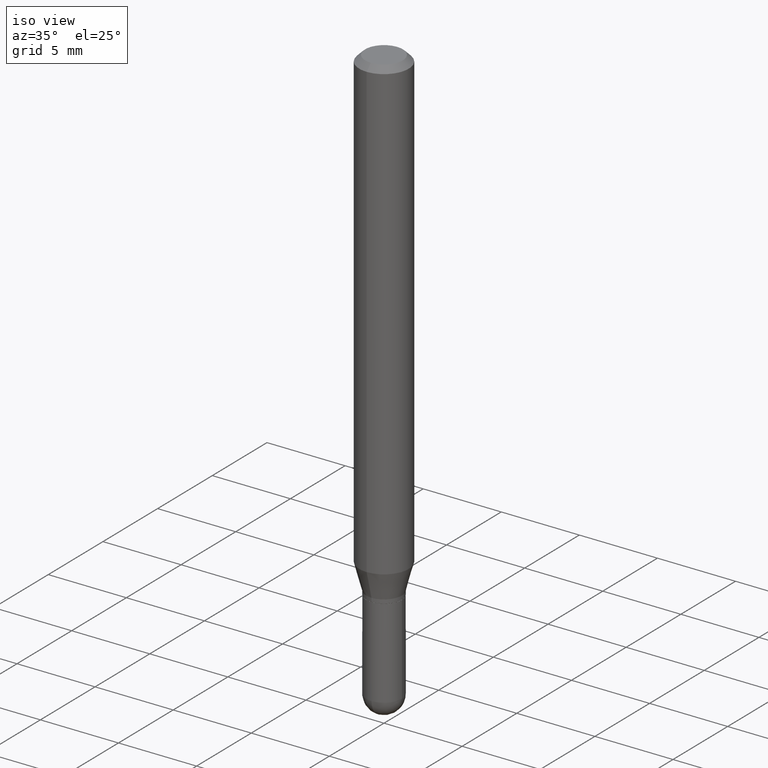
[diagram: clean part render]
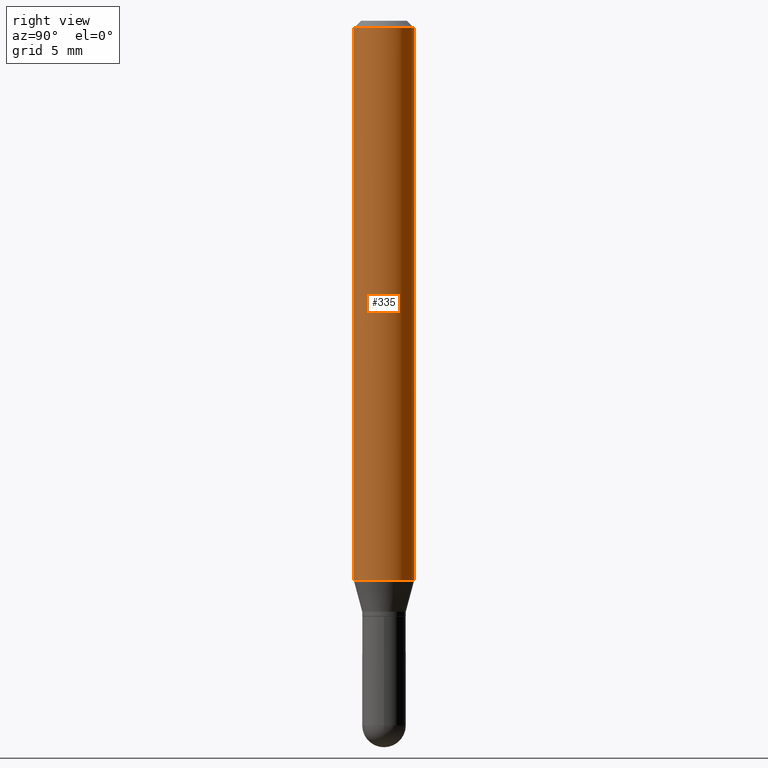
[diagram: tour spotlight — one face highlighted and labeled with its STEP entity id]
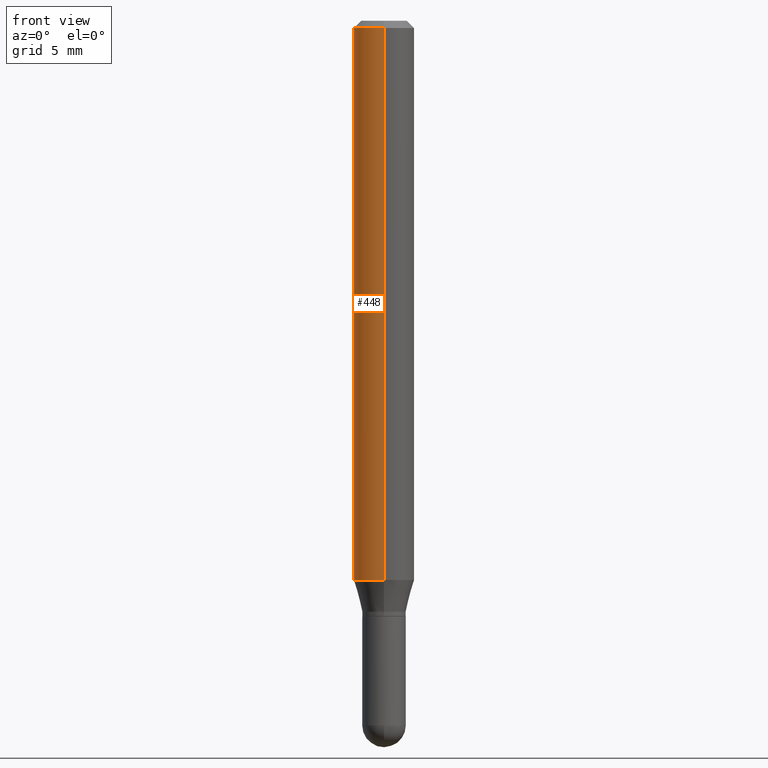
[diagram: tour spotlight — one face highlighted and labeled with its STEP entity id]
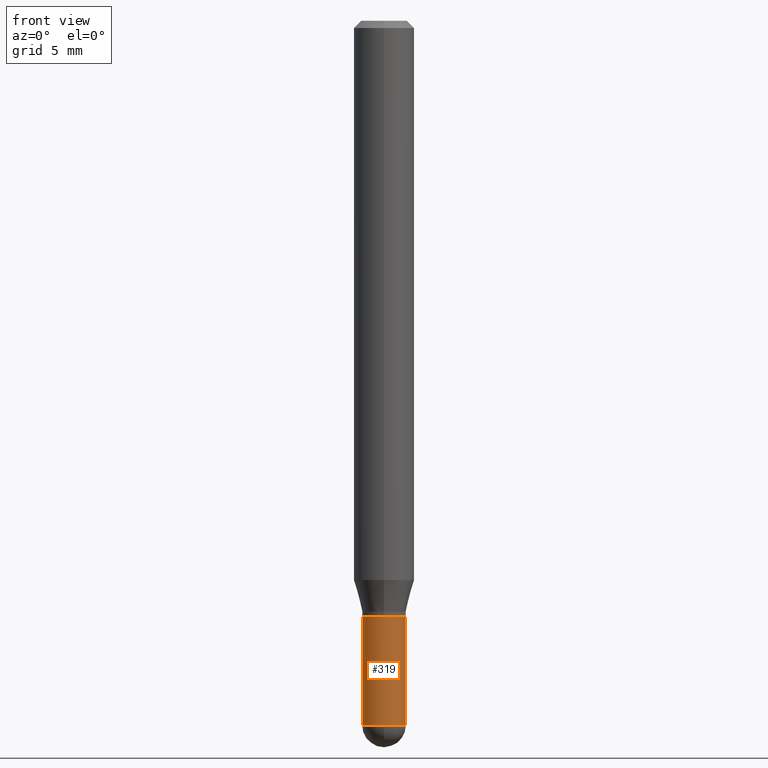
[diagram: tour spotlight — one face highlighted and labeled with its STEP entity id]
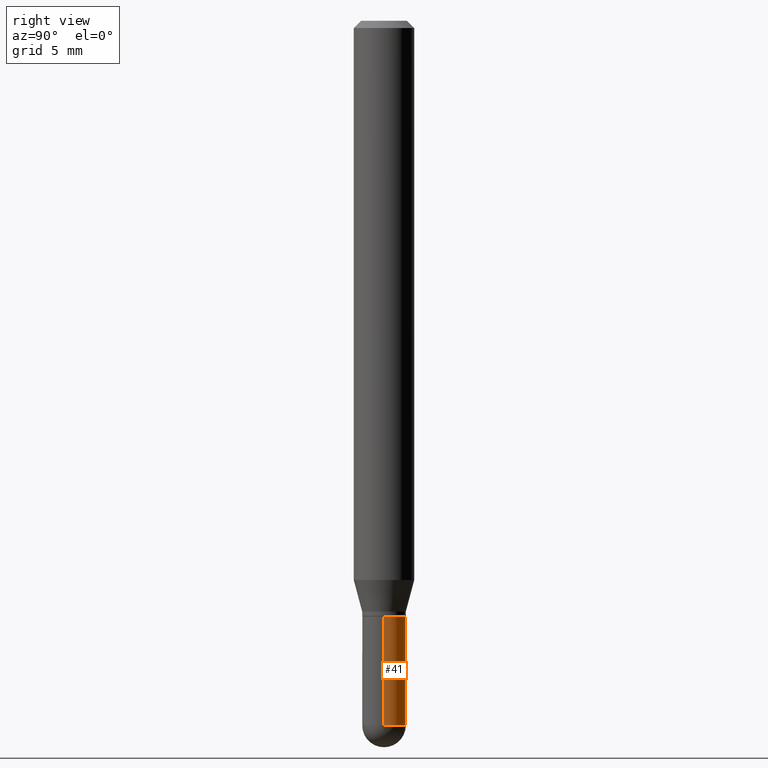
[diagram: tour spotlight — one face highlighted and labeled with its STEP entity id]
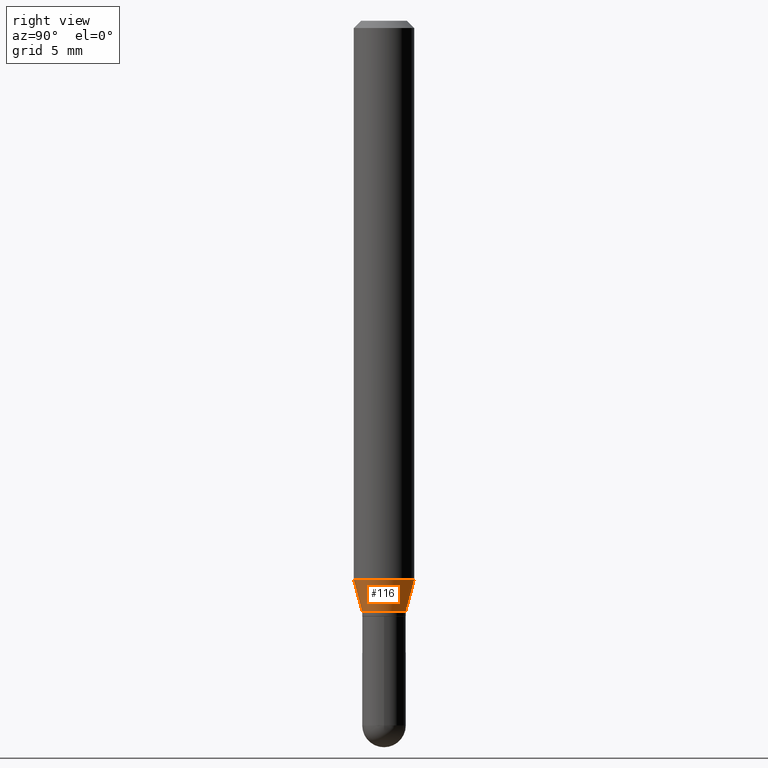
[diagram: tour spotlight — one face highlighted and labeled with its STEP entity id]
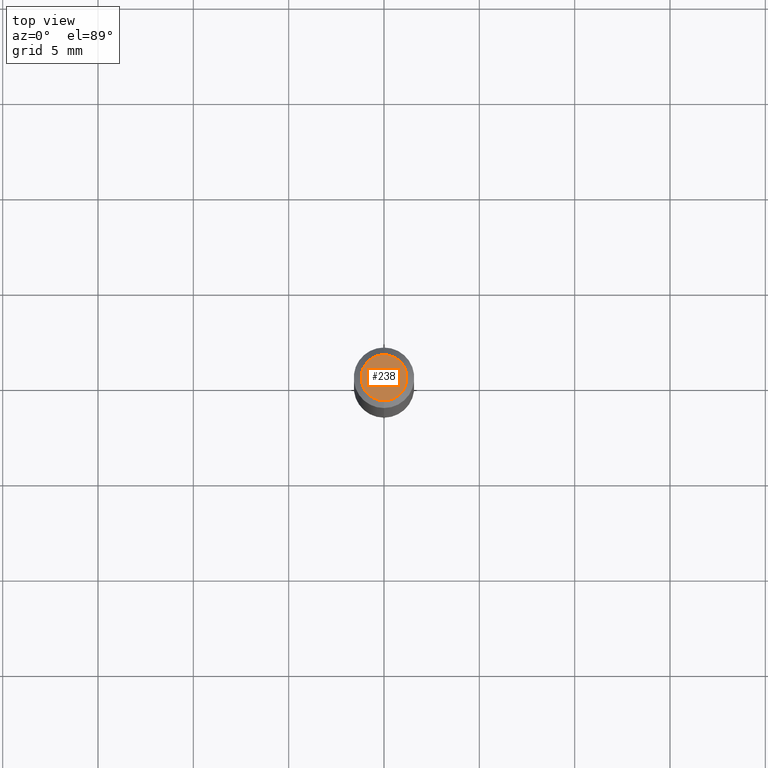
[diagram: tour spotlight — one face highlighted and labeled with its STEP entity id]
A machine part: a face-by-face anatomy tour. The part has 17 B-rep faces; the first image is the clean iso view, then the 6 largest visible faces are spotlighted one at a time (largest first), each with its STEP entity span.

Face 1 — right view, entity #335. In plain terms, the highlighted cylindrical surface (edge-blend (fillet) strip) has radius 1.5875 mm, axis along (-0, 0, 1).
Definition (entity closure, byte-faithful):
#1 = DIRECTION ( 'NONE',  ( -2.445450573677672764E-29, 3.491507448831563559E-15, 1.000000000000000000 ) ) ;
#18 = CIRCLE ( 'NONE', #508, 0.06250000000000000000 ) ;
#25 = EDGE_LOOP ( 'NONE', ( #144, #487, #149, #181 ) ) ;
#36 = VECTOR ( 'NONE', #1, 39.37007874015748143 ) ;
#45 = CARTESIAN_POINT ( 'NONE',  ( 2.823735148590400292E-29, -4.031605631678729186E-15, -1.154689110867545221 ) ) ;
#55 = VERTEX_POINT ( 'NONE', #104 ) ;
#68 = EDGE_CURVE ( 'NONE', #505, #55, #18, .T. ) ;
#97 = VECTOR ( 'NONE', #118, 39.37007874015748143 ) ;
#104 = CARTESIAN_POINT ( 'NONE',  ( 4.440892098500909166E-16, 0.06249999999999993755, -0.01500000000000022669 ) ) ;
#118 = DIRECTION ( 'NONE',  ( -2.445450573677672764E-29, 3.491507448831563559E-15, 1.000000000000000000 ) ) ;
#131 = LINE ( 'NONE', #279, #36 ) ;
#138 = CARTESIAN_POINT ( 'NONE',  ( 0.000000000000000000, 0.000000000000000000, 0.000000000000000000 ) ) ;
#144 = ORIENTED_EDGE ( 'NONE', *, *, #422, .T. ) ;
#149 = ORIENTED_EDGE ( 'NONE', *, *, #68, .F. ) ;
#156 = DIRECTION ( 'NONE',  ( -2.445450573677672764E-29, 3.491507448831563559E-15, 1.000000000000000000 ) ) ;
#177 = AXIS2_PLACEMENT_3D ( 'NONE', #138, #321, #362 ) ;
#181 = ORIENTED_EDGE ( 'NONE', *, *, #473, .F. ) ;
#206 = LINE ( 'NONE', #471, #97 ) ;
#237 = DIRECTION ( 'NONE',  ( -6.982962677686265922E-15, -1.000000000000000000, 3.483106191921935554E-15 ) ) ;
#255 = AXIS2_PLACEMENT_3D ( 'NONE', #45, #317, #479 ) ;
#262 = CARTESIAN_POINT ( 'NONE',  ( 4.440892098500907193E-16, 0.06249999999999596156, -1.154689110867545443 ) ) ;
#279 = CARTESIAN_POINT ( 'NONE',  ( 4.440892098500625669E-16, 0.06250000000000000000, -2.182192155519727224E-16 ) ) ;
#285 = CARTESIAN_POINT ( 'NONE',  ( -4.364351673553912750E-16, -0.06250000000000005551, -0.01499999999999979128 ) ) ;
#292 = VERTEX_POINT ( 'NONE', #262 ) ;
#293 = CIRCLE ( 'NONE', #255, 0.06250000000000000000 ) ;
#317 = DIRECTION ( 'NONE',  ( -2.445450573677672764E-29, 3.491507448831563559E-15, 1.000000000000000000 ) ) ;
#321 = DIRECTION ( 'NONE',  ( -2.445450573677672764E-29, 3.491507448831563559E-15, 1.000000000000000000 ) ) ;
#335 = ADVANCED_FACE ( 'NONE', ( #492 ), #403, .T. ) ;
#362 = DIRECTION ( 'NONE',  ( -6.982962677686265922E-15, -1.000000000000000000, 3.491507448831563559E-15 ) ) ;
#376 = CARTESIAN_POINT ( 'NONE',  ( 3.668175860516511966E-31, -5.237261173247348568E-17, -0.01500000000000000812 ) ) ;
#403 = CYLINDRICAL_SURFACE ( 'NONE', #177, 0.06250000000000000000 ) ;
#422 = EDGE_CURVE ( 'NONE', #462, #292, #293, .T. ) ;
#434 = CARTESIAN_POINT ( 'NONE',  ( -4.364351673553634183E-16, -0.06250000000000402456, -1.154689110867544777 ) ) ;
#462 = VERTEX_POINT ( 'NONE', #434 ) ;
#471 = CARTESIAN_POINT ( 'NONE',  ( -4.364351673553916201E-16, -0.06250000000000000000, 2.182192155519727224E-16 ) ) ;
#473 = EDGE_CURVE ( 'NONE', #462, #505, #206, .T. ) ;
#479 = DIRECTION ( 'NONE',  ( -6.982962677686265922E-15, -1.000000000000000000, 4.370956789862821150E-15 ) ) ;
#487 = ORIENTED_EDGE ( 'NONE', *, *, #495, .T. ) ;
#492 = FACE_OUTER_BOUND ( 'NONE', #25, .T. ) ;
#495 = EDGE_CURVE ( 'NONE', #292, #55, #131, .T. ) ;
#505 = VERTEX_POINT ( 'NONE', #285 ) ;
#508 = AXIS2_PLACEMENT_3D ( 'NONE', #376, #156, #237 ) ;

Face 2 — front view, entity #448. In plain terms, the highlighted cylindrical surface (edge-blend (fillet) strip) has radius 1.5875 mm, axis along (-0, 0, 1).
Definition (entity closure, byte-faithful):
#1 = DIRECTION ( 'NONE',  ( -2.445450573677672764E-29, 3.491507448831563559E-15, 1.000000000000000000 ) ) ;
#36 = VECTOR ( 'NONE', #1, 39.37007874015748143 ) ;
#54 = AXIS2_PLACEMENT_3D ( 'NONE', #126, #280, #435 ) ;
#55 = VERTEX_POINT ( 'NONE', #104 ) ;
#58 = EDGE_LOOP ( 'NONE', ( #109, #101, #500, #62 ) ) ;
#62 = ORIENTED_EDGE ( 'NONE', *, *, #174, .F. ) ;
#85 = CIRCLE ( 'NONE', #54, 0.06250000000000000000 ) ;
#97 = VECTOR ( 'NONE', #118, 39.37007874015748143 ) ;
#101 = ORIENTED_EDGE ( 'NONE', *, *, #145, .T. ) ;
#104 = CARTESIAN_POINT ( 'NONE',  ( 4.440892098500909166E-16, 0.06249999999999993755, -0.01500000000000022669 ) ) ;
#109 = ORIENTED_EDGE ( 'NONE', *, *, #495, .F. ) ;
#118 = DIRECTION ( 'NONE',  ( -2.445450573677672764E-29, 3.491507448831563559E-15, 1.000000000000000000 ) ) ;
#126 = CARTESIAN_POINT ( 'NONE',  ( 3.668175860516511966E-31, -5.237261173247348568E-17, -0.01500000000000000812 ) ) ;
#131 = LINE ( 'NONE', #279, #36 ) ;
#134 = AXIS2_PLACEMENT_3D ( 'NONE', #397, #450, #360 ) ;
#145 = EDGE_CURVE ( 'NONE', #292, #462, #150, .T. ) ;
#150 = CIRCLE ( 'NONE', #465, 0.06250000000000000000 ) ;
#169 = CARTESIAN_POINT ( 'NONE',  ( 2.823735148590400292E-29, -4.031605631678729186E-15, -1.154689110867545221 ) ) ;
#174 = EDGE_CURVE ( 'NONE', #55, #505, #85, .T. ) ;
#206 = LINE ( 'NONE', #471, #97 ) ;
#262 = CARTESIAN_POINT ( 'NONE',  ( 4.440892098500907193E-16, 0.06249999999999596156, -1.154689110867545443 ) ) ;
#274 = DIRECTION ( 'NONE',  ( -6.982962677686265922E-15, -1.000000000000000000, 4.370956789862821150E-15 ) ) ;
#279 = CARTESIAN_POINT ( 'NONE',  ( 4.440892098500625669E-16, 0.06250000000000000000, -2.182192155519727224E-16 ) ) ;
#280 = DIRECTION ( 'NONE',  ( -2.445450573677672764E-29, 3.491507448831563559E-15, 1.000000000000000000 ) ) ;
#285 = CARTESIAN_POINT ( 'NONE',  ( -4.364351673553912750E-16, -0.06250000000000005551, -0.01499999999999979128 ) ) ;
#292 = VERTEX_POINT ( 'NONE', #262 ) ;
#360 = DIRECTION ( 'NONE',  ( -6.982962677686265922E-15, -1.000000000000000000, 3.491507448831563559E-15 ) ) ;
#386 = CYLINDRICAL_SURFACE ( 'NONE', #134, 0.06250000000000000000 ) ;
#397 = CARTESIAN_POINT ( 'NONE',  ( 0.000000000000000000, 0.000000000000000000, 0.000000000000000000 ) ) ;
#432 = DIRECTION ( 'NONE',  ( -2.445450573677672764E-29, 3.491507448831563559E-15, 1.000000000000000000 ) ) ;
#434 = CARTESIAN_POINT ( 'NONE',  ( -4.364351673553634183E-16, -0.06250000000000402456, -1.154689110867544777 ) ) ;
#435 = DIRECTION ( 'NONE',  ( -6.982962677686265922E-15, -1.000000000000000000, 3.483106191921935554E-15 ) ) ;
#448 = ADVANCED_FACE ( 'NONE', ( #469 ), #386, .T. ) ;
#450 = DIRECTION ( 'NONE',  ( -2.445450573677672764E-29, 3.491507448831563559E-15, 1.000000000000000000 ) ) ;
#462 = VERTEX_POINT ( 'NONE', #434 ) ;
#465 = AXIS2_PLACEMENT_3D ( 'NONE', #169, #432, #274 ) ;
#469 = FACE_OUTER_BOUND ( 'NONE', #58, .T. ) ;
#471 = CARTESIAN_POINT ( 'NONE',  ( -4.364351673553916201E-16, -0.06250000000000000000, 2.182192155519727224E-16 ) ) ;
#473 = EDGE_CURVE ( 'NONE', #462, #505, #206, .T. ) ;
#495 = EDGE_CURVE ( 'NONE', #292, #55, #131, .T. ) ;
#500 = ORIENTED_EDGE ( 'NONE', *, *, #473, .T. ) ;
#505 = VERTEX_POINT ( 'NONE', #285 ) ;

Face 3 — front view, entity #319. In plain terms, the highlighted cylindrical surface (edge-blend (fillet) strip) has radius 1.143 mm, axis along (-0, 0, 1).
Definition (entity closure, byte-faithful):
#7 = CARTESIAN_POINT ( 'NONE',  ( 3.558157112999374623E-29, -5.080105348016777334E-15, -1.455000000000000293 ) ) ;
#13 = CARTESIAN_POINT ( 'NONE',  ( -0.04500000000000001221, -4.367569466304877886E-15, -1.455000000000000293 ) ) ;
#23 = VERTEX_POINT ( 'NONE', #265 ) ;
#35 = AXIS2_PLACEMENT_3D ( 'NONE', #355, #272, #318 ) ;
#38 = EDGE_CURVE ( 'NONE', #135, #23, #147, .T. ) ;
#47 = AXIS2_PLACEMENT_3D ( 'NONE', #171, #286, #180 ) ;
#49 = FACE_OUTER_BOUND ( 'NONE', #259, .T. ) ;
#52 = CARTESIAN_POINT ( 'NONE',  ( 3.558157112999374623E-29, -5.080105348016777334E-15, -1.455000000000000293 ) ) ;
#75 = AXIS2_PLACEMENT_3D ( 'NONE', #52, #136, #289 ) ;
#76 = CARTESIAN_POINT ( 'NONE',  ( -3.197442310920094252E-16, -0.04500000000000508454, -1.454999999999999849 ) ) ;
#92 = ORIENTED_EDGE ( 'NONE', *, *, #369, .T. ) ;
#102 = EDGE_CURVE ( 'NONE', #457, #410, #480, .T. ) ;
#107 = CYLINDRICAL_SURFACE ( 'NONE', #47, 0.04500000000000000527 ) ;
#132 = VECTOR ( 'NONE', #387, 39.37007874015748143 ) ;
#135 = VERTEX_POINT ( 'NONE', #240 ) ;
#136 = DIRECTION ( 'NONE',  ( -2.445468806185136597E-29, 3.491481338843145583E-15, 1.000000000000000000 ) ) ;
#147 = LINE ( 'NONE', #296, #207 ) ;
#153 = ORIENTED_EDGE ( 'NONE', *, *, #166, .T. ) ;
#159 = EDGE_CURVE ( 'NONE', #410, #23, #459, .T. ) ;
#165 = DIRECTION ( 'NONE',  ( -2.445468806185136597E-29, 3.491481338843145583E-15, 1.000000000000000000 ) ) ;
#166 = EDGE_CURVE ( 'NONE', #230, #135, #245, .T. ) ;
#170 = CARTESIAN_POINT ( 'NONE',  ( -0.04499999999999999833, -4.367569466304877886E-15, -1.230000000000000204 ) ) ;
#171 = CARTESIAN_POINT ( 'NONE',  ( 0.000000000000000000, 0.000000000000000000, 0.000000000000000000 ) ) ;
#179 = ORIENTED_EDGE ( 'NONE', *, *, #159, .F. ) ;
#180 = DIRECTION ( 'NONE',  ( 1.000000000000000000, -6.982962677686267499E-15, 4.876176775795935793E-29 ) ) ;
#183 = ORIENTED_EDGE ( 'NONE', *, *, #38, .T. ) ;
#207 = VECTOR ( 'NONE', #225, 39.37007874015748143 ) ;
#225 = DIRECTION ( 'NONE',  ( -2.445468806185136877E-29, 3.491481338843145188E-15, 1.000000000000000000 ) ) ;
#230 = VERTEX_POINT ( 'NONE', #76 ) ;
#240 = CARTESIAN_POINT ( 'NONE',  ( 0.04500000000000001221, -5.001547017892805729E-15, -1.455000000000000293 ) ) ;
#245 = CIRCLE ( 'NONE', #356, 0.04500000000000001221 ) ;
#259 = EDGE_LOOP ( 'NONE', ( #445, #92, #153, #183, #179 ) ) ;
#265 = CARTESIAN_POINT ( 'NONE',  ( 0.04499999999999999833, -4.608755367272951648E-15, -1.230000000000000204 ) ) ;
#272 = DIRECTION ( 'NONE',  ( -2.445468806185136597E-29, 3.491481338843145583E-15, 1.000000000000000000 ) ) ;
#286 = DIRECTION ( 'NONE',  ( -2.445468806185136597E-29, 3.491481338843145583E-15, 1.000000000000000000 ) ) ;
#289 = DIRECTION ( 'NONE',  ( 1.000000000000000000, -6.982962677686266711E-15, 0.000000000000000000 ) ) ;
#296 = CARTESIAN_POINT ( 'NONE',  ( 0.04500000000000000527, -3.142333204958820809E-16, 2.194279549108171317E-30 ) ) ;
#316 = DIRECTION ( 'NONE',  ( 1.000000000000000000, -6.982962677686266711E-15, 0.000000000000000000 ) ) ;
#318 = DIRECTION ( 'NONE',  ( 1.000000000000000000, -6.982962677686269077E-15, 0.000000000000000000 ) ) ;
#319 = ADVANCED_FACE ( 'NONE', ( #49 ), #107, .T. ) ;
#355 = CARTESIAN_POINT ( 'NONE',  ( 3.007926631607718216E-29, -4.294522046777069173E-15, -1.230000000000000204 ) ) ;
#356 = AXIS2_PLACEMENT_3D ( 'NONE', #7, #165, #316 ) ;
#369 = EDGE_CURVE ( 'NONE', #457, #230, #509, .T. ) ;
#387 = DIRECTION ( 'NONE',  ( -2.445468806185136877E-29, 3.491481338843145188E-15, 1.000000000000000000 ) ) ;
#410 = VERTEX_POINT ( 'NONE', #170 ) ;
#445 = ORIENTED_EDGE ( 'NONE', *, *, #102, .F. ) ;
#457 = VERTEX_POINT ( 'NONE', #13 ) ;
#459 = CIRCLE ( 'NONE', #35, 0.04499999999999999833 ) ;
#467 = CARTESIAN_POINT ( 'NONE',  ( -0.04500000000000000527, 3.197442310920451211E-16, -2.213520790614707910E-30 ) ) ;
#480 = LINE ( 'NONE', #467, #132 ) ;
#509 = CIRCLE ( 'NONE', #75, 0.04500000000000001221 ) ;

Face 4 — right view, entity #41. In plain terms, the highlighted cylindrical surface (edge-blend (fillet) strip) has radius 1.143 mm, axis along (-0, 0, 1).
Definition (entity closure, byte-faithful):
#2 = EDGE_CURVE ( 'NONE', #341, #457, #215, .T. ) ;
#10 = DIRECTION ( 'NONE',  ( -2.445468806185136597E-29, 3.491481338843145583E-15, 1.000000000000000000 ) ) ;
#13 = CARTESIAN_POINT ( 'NONE',  ( -0.04500000000000001221, -4.367569466304877886E-15, -1.455000000000000293 ) ) ;
#23 = VERTEX_POINT ( 'NONE', #265 ) ;
#24 = AXIS2_PLACEMENT_3D ( 'NONE', #77, #10, #73 ) ;
#38 = EDGE_CURVE ( 'NONE', #135, #23, #147, .T. ) ;
#41 = ADVANCED_FACE ( 'NONE', ( #423 ), #413, .T. ) ;
#66 = DIRECTION ( 'NONE',  ( 1.000000000000000000, -6.982962677686266711E-15, 0.000000000000000000 ) ) ;
#67 = CIRCLE ( 'NONE', #87, 0.04500000000000001221 ) ;
#73 = DIRECTION ( 'NONE',  ( 1.000000000000000000, -6.982962677686269077E-15, 0.000000000000000000 ) ) ;
#77 = CARTESIAN_POINT ( 'NONE',  ( 3.007926631607718216E-29, -4.294522046777069173E-15, -1.230000000000000204 ) ) ;
#87 = AXIS2_PLACEMENT_3D ( 'NONE', #398, #327, #250 ) ;
#102 = EDGE_CURVE ( 'NONE', #457, #410, #480, .T. ) ;
#132 = VECTOR ( 'NONE', #387, 39.37007874015748143 ) ;
#135 = VERTEX_POINT ( 'NONE', #240 ) ;
#147 = LINE ( 'NONE', #296, #207 ) ;
#163 = AXIS2_PLACEMENT_3D ( 'NONE', #415, #193, #66 ) ;
#170 = CARTESIAN_POINT ( 'NONE',  ( -0.04499999999999999833, -4.367569466304877886E-15, -1.230000000000000204 ) ) ;
#178 = ORIENTED_EDGE ( 'NONE', *, *, #2, .T. ) ;
#193 = DIRECTION ( 'NONE',  ( -2.445468806185136597E-29, 3.491481338843145583E-15, 1.000000000000000000 ) ) ;
#198 = CIRCLE ( 'NONE', #24, 0.04499999999999999833 ) ;
#207 = VECTOR ( 'NONE', #225, 39.37007874015748143 ) ;
#210 = CARTESIAN_POINT ( 'NONE',  ( 3.142333204959174810E-16, 0.04499999999999491213, -1.455000000000000515 ) ) ;
#215 = CIRCLE ( 'NONE', #163, 0.04500000000000001221 ) ;
#218 = ORIENTED_EDGE ( 'NONE', *, *, #417, .F. ) ;
#225 = DIRECTION ( 'NONE',  ( -2.445468806185136877E-29, 3.491481338843145188E-15, 1.000000000000000000 ) ) ;
#231 = DIRECTION ( 'NONE',  ( 1.000000000000000000, -6.982962677686267499E-15, 4.876176775795935793E-29 ) ) ;
#240 = CARTESIAN_POINT ( 'NONE',  ( 0.04500000000000001221, -5.001547017892805729E-15, -1.455000000000000293 ) ) ;
#250 = DIRECTION ( 'NONE',  ( 1.000000000000000000, -6.982962677686266711E-15, 0.000000000000000000 ) ) ;
#265 = CARTESIAN_POINT ( 'NONE',  ( 0.04499999999999999833, -4.608755367272951648E-15, -1.230000000000000204 ) ) ;
#296 = CARTESIAN_POINT ( 'NONE',  ( 0.04500000000000000527, -3.142333204958820809E-16, 2.194279549108171317E-30 ) ) ;
#327 = DIRECTION ( 'NONE',  ( -2.445468806185136597E-29, 3.491481338843145583E-15, 1.000000000000000000 ) ) ;
#328 = EDGE_CURVE ( 'NONE', #135, #341, #67, .T. ) ;
#340 = ORIENTED_EDGE ( 'NONE', *, *, #38, .F. ) ;
#341 = VERTEX_POINT ( 'NONE', #210 ) ;
#372 = EDGE_LOOP ( 'NONE', ( #178, #451, #218, #340, #420 ) ) ;
#377 = CARTESIAN_POINT ( 'NONE',  ( 0.000000000000000000, 0.000000000000000000, 0.000000000000000000 ) ) ;
#380 = DIRECTION ( 'NONE',  ( -2.445468806185136597E-29, 3.491481338843145583E-15, 1.000000000000000000 ) ) ;
#387 = DIRECTION ( 'NONE',  ( -2.445468806185136877E-29, 3.491481338843145188E-15, 1.000000000000000000 ) ) ;
#398 = CARTESIAN_POINT ( 'NONE',  ( 3.558157112999374623E-29, -5.080105348016777334E-15, -1.455000000000000293 ) ) ;
#410 = VERTEX_POINT ( 'NONE', #170 ) ;
#413 = CYLINDRICAL_SURFACE ( 'NONE', #485, 0.04500000000000000527 ) ;
#415 = CARTESIAN_POINT ( 'NONE',  ( 3.558157112999374623E-29, -5.080105348016777334E-15, -1.455000000000000293 ) ) ;
#417 = EDGE_CURVE ( 'NONE', #23, #410, #198, .T. ) ;
#420 = ORIENTED_EDGE ( 'NONE', *, *, #328, .T. ) ;
#423 = FACE_OUTER_BOUND ( 'NONE', #372, .T. ) ;
#451 = ORIENTED_EDGE ( 'NONE', *, *, #102, .T. ) ;
#457 = VERTEX_POINT ( 'NONE', #13 ) ;
#467 = CARTESIAN_POINT ( 'NONE',  ( -0.04500000000000000527, 3.197442310920451211E-16, -2.213520790614707910E-30 ) ) ;
#480 = LINE ( 'NONE', #467, #132 ) ;
#485 = AXIS2_PLACEMENT_3D ( 'NONE', #377, #380, #231 ) ;

Face 5 — right view, entity #116. In plain terms, the highlighted conical surface has half-angle 15 deg.
Definition (entity closure, byte-faithful):
#20 = DIRECTION ( 'NONE',  ( -1.807323732225328562E-15, -0.2588190451025179639, 0.9659258262890690894 ) ) ;
#45 = CARTESIAN_POINT ( 'NONE',  ( 2.823735148590400292E-29, -4.031605631678729186E-15, -1.154689110867545221 ) ) ;
#57 = VERTEX_POINT ( 'NONE', #304 ) ;
#59 = EDGE_CURVE ( 'NONE', #191, #57, #332, .T. ) ;
#71 = DIRECTION ( 'NONE',  ( -2.445450573677672764E-29, 3.491507448831563559E-15, 1.000000000000000000 ) ) ;
#89 = ORIENTED_EDGE ( 'NONE', *, *, #59, .T. ) ;
#93 = LINE ( 'NONE', #371, #368 ) ;
#110 = CARTESIAN_POINT ( 'NONE',  ( 2.983449699886760934E-29, -4.259639087574507613E-15, -1.220000000000000195 ) ) ;
#116 = ADVANCED_FACE ( 'NONE', ( #204 ), #331, .T. ) ;
#117 = CARTESIAN_POINT ( 'NONE',  ( 2.983449699886760934E-29, -4.259639087574507613E-15, -1.220000000000000195 ) ) ;
#124 = DIRECTION ( 'NONE',  ( -6.982962677686265922E-15, -1.000000000000000000, 3.035386659626955187E-15 ) ) ;
#158 = CARTESIAN_POINT ( 'NONE',  ( -3.142333204958525479E-16, -0.04500000000000432127, -1.219999999999999973 ) ) ;
#191 = VERTEX_POINT ( 'NONE', #158 ) ;
#195 = CARTESIAN_POINT ( 'NONE',  ( 3.197442310920752950E-16, 0.04499999999999580030, -1.220000000000000195 ) ) ;
#204 = FACE_OUTER_BOUND ( 'NONE', #490, .T. ) ;
#219 = EDGE_CURVE ( 'NONE', #57, #292, #470, .T. ) ;
#255 = AXIS2_PLACEMENT_3D ( 'NONE', #45, #317, #479 ) ;
#262 = CARTESIAN_POINT ( 'NONE',  ( 4.440892098500907193E-16, 0.06249999999999596156, -1.154689110867545443 ) ) ;
#264 = DIRECTION ( 'NONE',  ( -6.982962677686265922E-15, -1.000000000000000000, 3.035386659626955187E-15 ) ) ;
#266 = AXIS2_PLACEMENT_3D ( 'NONE', #110, #466, #264 ) ;
#270 = EDGE_CURVE ( 'NONE', #191, #462, #93, .T. ) ;
#287 = ORIENTED_EDGE ( 'NONE', *, *, #270, .F. ) ;
#292 = VERTEX_POINT ( 'NONE', #262 ) ;
#293 = CIRCLE ( 'NONE', #255, 0.06250000000000000000 ) ;
#294 = ORIENTED_EDGE ( 'NONE', *, *, #422, .F. ) ;
#304 = CARTESIAN_POINT ( 'NONE',  ( 3.819167204710830318E-16, 0.04499999999999580030, -1.220000000000000195 ) ) ;
#317 = DIRECTION ( 'NONE',  ( -2.445450573677672764E-29, 3.491507448831563559E-15, 1.000000000000000000 ) ) ;
#331 = CONICAL_SURFACE ( 'NONE', #394, 0.04500000000000006078, 0.2617993877991500740 ) ;
#332 = CIRCLE ( 'NONE', #266, 0.04500000000000006078 ) ;
#368 = VECTOR ( 'NONE', #20, 39.37007874015748854 ) ;
#371 = CARTESIAN_POINT ( 'NONE',  ( -3.142333204958525479E-16, -0.04500000000000432127, -1.219999999999999973 ) ) ;
#394 = AXIS2_PLACEMENT_3D ( 'NONE', #117, #71, #124 ) ;
#422 = EDGE_CURVE ( 'NONE', #462, #292, #293, .T. ) ;
#425 = DIRECTION ( 'NONE',  ( 1.839019923739598738E-15, 0.2588190451025247363, 0.9659258262890673130 ) ) ;
#429 = VECTOR ( 'NONE', #425, 39.37007874015748854 ) ;
#434 = CARTESIAN_POINT ( 'NONE',  ( -4.364351673553634183E-16, -0.06250000000000402456, -1.154689110867544777 ) ) ;
#456 = ORIENTED_EDGE ( 'NONE', *, *, #219, .T. ) ;
#462 = VERTEX_POINT ( 'NONE', #434 ) ;
#466 = DIRECTION ( 'NONE',  ( -2.445450573677672764E-29, 3.491507448831563559E-15, 1.000000000000000000 ) ) ;
#470 = LINE ( 'NONE', #195, #429 ) ;
#479 = DIRECTION ( 'NONE',  ( -6.982962677686265922E-15, -1.000000000000000000, 4.370956789862821150E-15 ) ) ;
#490 = EDGE_LOOP ( 'NONE', ( #89, #456, #294, #287 ) ) ;

Face 6 — top view, entity #238. In plain terms, the highlighted planar face has unit normal (0, -0, -1).
Definition (entity closure, byte-faithful):
#3 = DIRECTION ( 'NONE',  ( 2.445450573677672483E-29, -3.491507448831563559E-15, -1.000000000000000000 ) ) ;
#40 = FACE_OUTER_BOUND ( 'NONE', #416, .T. ) ;
#42 = CARTESIAN_POINT ( 'NONE',  ( -3.773273898774340269E-16, -0.04749999999999999362, 1.569875244521179969E-16 ) ) ;
#46 = CARTESIAN_POINT ( 'NONE',  ( 3.840629472727447874E-16, 0.04749999999999999362, -1.747056831868805136E-16 ) ) ;
#74 = AXIS2_PLACEMENT_3D ( 'NONE', #353, #3, #458 ) ;
#103 = VERTEX_POINT ( 'NONE', #42 ) ;
#137 = VERTEX_POINT ( 'NONE', #46 ) ;
#202 = PLANE ( 'NONE',  #74 ) ;
#212 = CARTESIAN_POINT ( 'NONE',  ( 2.166444072121849757E-46, -3.093154160100163242E-32, -8.859079367381244516E-18 ) ) ;
#228 = AXIS2_PLACEMENT_3D ( 'NONE', #212, #291, #253 ) ;
#238 = ADVANCED_FACE ( 'NONE', ( #40 ), #202, .F. ) ;
#253 = DIRECTION ( 'NONE',  ( -6.982962677686266711E-15, -1.000000000000000000, 3.491507448831563559E-15 ) ) ;
#291 = DIRECTION ( 'NONE',  ( -2.445450573677672764E-29, 3.491507448831563559E-15, 1.000000000000000000 ) ) ;
#298 = CIRCLE ( 'NONE', #460, 0.04749999999999999362 ) ;
#302 = EDGE_CURVE ( 'NONE', #103, #137, #312, .T. ) ;
#308 = DIRECTION ( 'NONE',  ( -2.445450573677672764E-29, 3.491507448831563559E-15, 1.000000000000000000 ) ) ;
#312 = CIRCLE ( 'NONE', #228, 0.04749999999999999362 ) ;
#315 = CARTESIAN_POINT ( 'NONE',  ( 2.166444072121849757E-46, -3.093154160100163242E-32, -8.859079367381244516E-18 ) ) ;
#338 = ORIENTED_EDGE ( 'NONE', *, *, #302, .T. ) ;
#349 = DIRECTION ( 'NONE',  ( -6.982962677686266711E-15, -1.000000000000000000, 3.491507448831563559E-15 ) ) ;
#353 = CARTESIAN_POINT ( 'NONE',  ( 3.316907271900976096E-16, 0.04749999999999999362, -1.702761435031898844E-16 ) ) ;
#416 = EDGE_LOOP ( 'NONE', ( #504, #338 ) ) ;
#436 = EDGE_CURVE ( 'NONE', #137, #103, #298, .T. ) ;
#458 = DIRECTION ( 'NONE',  ( 6.982962677686265922E-15, 1.000000000000000000, -3.491507448831563559E-15 ) ) ;
#460 = AXIS2_PLACEMENT_3D ( 'NONE', #315, #308, #349 ) ;
#504 = ORIENTED_EDGE ( 'NONE', *, *, #436, .T. ) ;